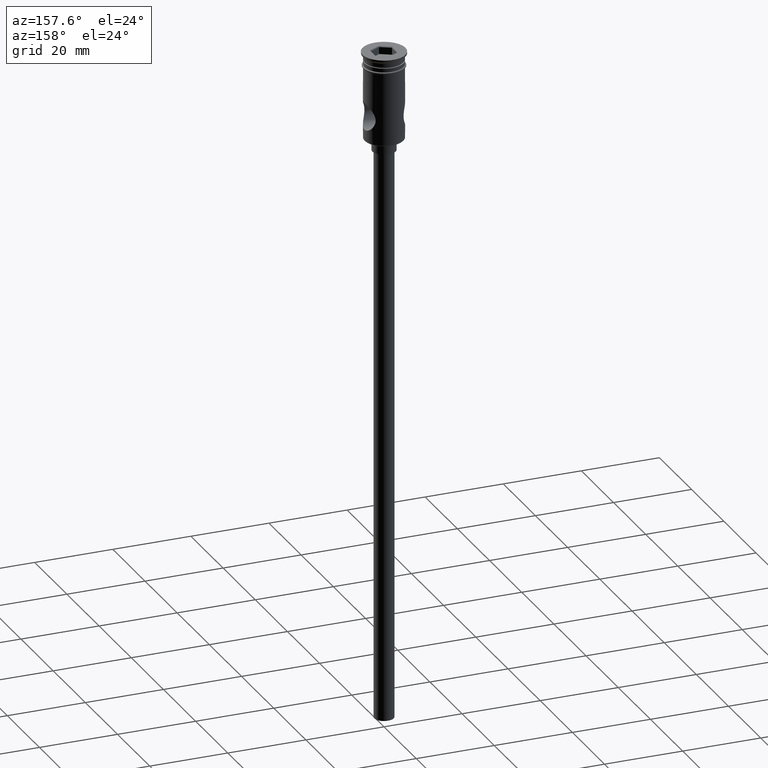
[diagram: clean part render]
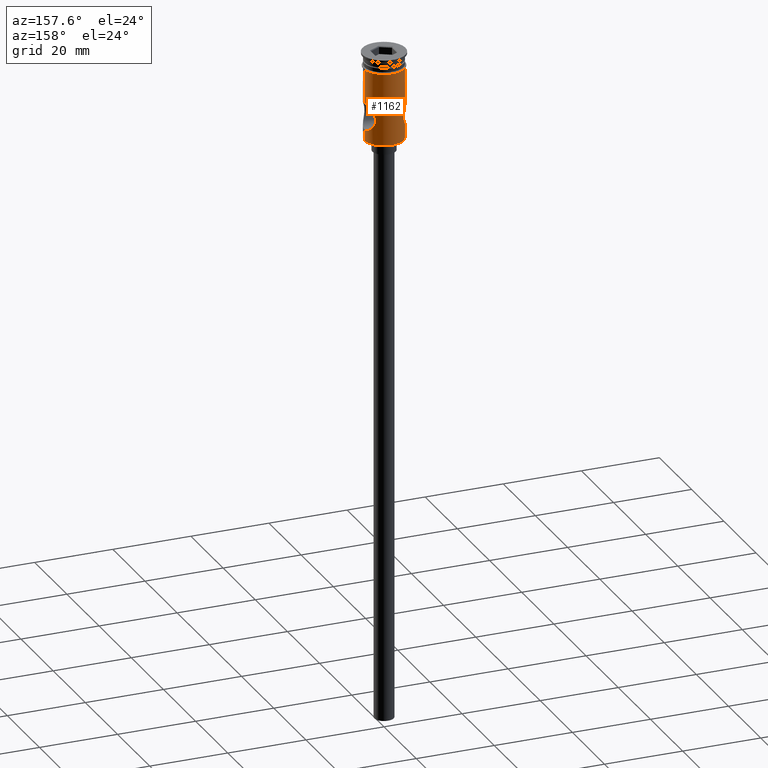
[diagram: same view with one face highlighted and labeled with its STEP entity id]
A machine part, auxiliary view. The second image highlights one B-rep face of the part: STEP entity #1162.
In plain terms, the highlighted cylindrical surface (edge-blend (fillet) strip) has radius 5 mm, axis along (-0, -0, 1).
Its self-contained STEP definition (entity closure, byte-faithful):
#6 = LINE ( 'NONE', #348, #964 ) ;
#7 = CARTESIAN_POINT ( 'NONE',  ( -4.747110842247819207, 1.585336329575865566, -19.12882620454187688 ) ) ;
#21 = CARTESIAN_POINT ( 'NONE',  ( 4.674688623500593998, 1.785640449077907865, -19.01869104075543504 ) ) ;
#28 = CARTESIAN_POINT ( 'NONE',  ( 4.999999999999997335, 0.000000000000000000, -19.50000000000000000 ) ) ;
#34 = CARTESIAN_POINT ( 'NONE',  ( 0.000000000000000000, 0.000000000000000000, -22.29999999999998295 ) ) ;
#37 = EDGE_CURVE ( 'NONE', #611, #125, #134, .T. ) ;
#44 = ORIENTED_EDGE ( 'NONE', *, *, #98, .F. ) ;
#46 = CARTESIAN_POINT ( 'NONE',  ( 3.570659081539441004, 3.500056246640168567, -15.76290149602504975 ) ) ;
#54 = CARTESIAN_POINT ( 'NONE',  ( 4.673268569421630936, 1.789070029896046243, -12.98354582332885165 ) ) ;
#62 = CARTESIAN_POINT ( 'NONE',  ( 4.514987869455996616, 2.157566970566973108, -13.23509997660900517 ) ) ;
#68 = DIRECTION ( 'NONE',  ( -0.000000000000000000, -0.000000000000000000, 1.000000000000000000 ) ) ;
#69 = CARTESIAN_POINT ( 'NONE',  ( 3.594836440833074409, 3.475833503732776997, -15.52636569858374216 ) ) ;
#75 = CARTESIAN_POINT ( 'NONE',  ( 3.897704841096373496, 3.133912156553521289, -14.42504095752970272 ) ) ;
#88 = LINE ( 'NONE', #1310, #356 ) ;
#98 = EDGE_CURVE ( 'NONE', #510, #863, #897, .T. ) ;
#107 = CARTESIAN_POINT ( 'NONE',  ( 4.999999999999997335, 0.000000000000000000, 0.000000000000000000 ) ) ;
#112 = AXIS2_PLACEMENT_3D ( 'NONE', #34, #505, #155 ) ;
#125 = VERTEX_POINT ( 'NONE', #1468 ) ;
#134 = LINE ( 'NONE', #718, #1143 ) ;
#139 = CARTESIAN_POINT ( 'NONE',  ( 4.514512332921254867, 2.158796872327483296, -18.76416415521027048 ) ) ;
#142 = B_SPLINE_CURVE_WITH_KNOTS ( 'NONE', 3,
 ( #414, #1072, #973, #1422, #756, #1304, #1292, #271, #961, #507, #388, #724, #977, #851, #162, #1193, #616, #285, #968, #280, #738, #750, #1202, #178, #625, #185, #630, #323, #7, #330, #872, #551, #1353, #896 ),
 .UNSPECIFIED., .F., .F.,
 ( 4, 2, 2, 2, 2, 2, 2, 2, 2, 2, 2, 2, 2, 2, 2, 2, 4 ),
 ( 0.01136858566133556320, 0.01207818438826614021, 0.01278778311519671897, 0.01349738184212729772, 0.01420698056905787474, 0.01491657929598845175, 0.01562617802291902877, 0.01633577674984960579, 0.01704537547678018627, 0.01775497420371076329, 0.01846457293064134031, 0.01917417165757191733, 0.01988377038450249434, 0.02059336911143307483, 0.02130296783836365185, 0.02201256656529422887, 0.02272216529222480588 ),
 .UNSPECIFIED. ) ;
#155 = DIRECTION ( 'NONE',  ( -1.000000000000000000, 0.000000000000000000, 0.000000000000000000 ) ) ;
#162 = CARTESIAN_POINT ( 'NONE',  ( -3.683539878596076012, 3.381675694554021394, -15.06753625433506016 ) ) ;
#169 = CARTESIAN_POINT ( 'NONE',  ( 3.684801900393930740, 3.380303005003528316, -16.93705528951160844 ) ) ;
#178 = CARTESIAN_POINT ( 'NONE',  ( -4.161034651282145447, 2.776525939387527675, -18.14249632040765547 ) ) ;
#185 = CARTESIAN_POINT ( 'NONE',  ( -4.430092741868957518, 2.325186606330109651, -18.62532192001001974 ) ) ;
#191 = CARTESIAN_POINT ( 'NONE',  ( 4.250179789261264496, 2.639708521817378362, -18.30881877567685834 ) ) ;
#234 = DIRECTION ( 'NONE',  ( 1.000000000000000000, 0.000000000000000000, 0.000000000000000000 ) ) ;
#237 = EDGE_CURVE ( 'NONE', #918, #510, #1449, .T. ) ;
#254 = CARTESIAN_POINT ( 'NONE',  ( 4.999999999999997335, -2.566613809368467357E-18, -12.50000000000000000 ) ) ;
#259 = DIRECTION ( 'NONE',  ( -0.000000000000000000, -0.000000000000000000, 1.000000000000000000 ) ) ;
#260 = CARTESIAN_POINT ( 'NONE',  ( 0.000000000000000000, 0.000000000000000000, 0.000000000000000000 ) ) ;
#261 = EDGE_CURVE ( 'NONE', #737, #125, #142, .T. ) ;
#265 = VECTOR ( 'NONE', #1227, 1000.000000000000000 ) ;
#268 = CYLINDRICAL_SURFACE ( 'NONE', #598, 4.999999999999997335 ) ;
#271 = CARTESIAN_POINT ( 'NONE',  ( -4.514482534237688860, 2.158728634962964854, -13.23590550600187932 ) ) ;
#276 = CARTESIAN_POINT ( 'NONE',  ( 3.595807167575519880, 3.474821472305468006, -16.47972571000775233 ) ) ;
#280 = CARTESIAN_POINT ( 'NONE',  ( -3.685548694541103565, 3.379498371712150284, -16.94023240168401045 ) ) ;
#285 = CARTESIAN_POINT ( 'NONE',  ( -3.570994643509252331, 3.499713904565604050, -16.24506344908463973 ) ) ;
#319 = CARTESIAN_POINT ( 'NONE',  ( -5.000000000000000000, 6.123233995736766282E-16, -3.799999999999998934 ) ) ;
#323 = CARTESIAN_POINT ( 'NONE',  ( -4.675804657553948473, 1.782469094714183910, -19.02037251247935146 ) ) ;
#330 = CARTESIAN_POINT ( 'NONE',  ( -4.867955598446419785, 1.162480502208107280, -19.30930261204487763 ) ) ;
#335 = ORIENTED_EDGE ( 'NONE', *, *, #1459, .F. ) ;
#340 = CARTESIAN_POINT ( 'NONE',  ( 4.999999999999997335, 0.000000000000000000, -19.50000000000000000 ) ) ;
#348 = CARTESIAN_POINT ( 'NONE',  ( 4.999999999999997335, 0.000000000000000000, 0.000000000000000000 ) ) ;
#356 = VECTOR ( 'NONE', #68, 1000.000000000000000 ) ;
#375 = CIRCLE ( 'NONE', #112, 4.999999999999997335 ) ;
#379 = DIRECTION ( 'NONE',  ( 1.000000000000000000, 0.000000000000000000, 0.000000000000000000 ) ) ;
#388 = CARTESIAN_POINT ( 'NONE',  ( -4.157772080973118456, 2.781374294039361761, -13.86384087946209398 ) ) ;
#393 = CARTESIAN_POINT ( 'NONE',  ( 4.428881612395301204, 2.327583483424053856, -13.37666337410697004 ) ) ;
#406 = CARTESIAN_POINT ( 'NONE',  ( 3.982200312216191307, 3.027363768862568083, -17.77022219329247577 ) ) ;
#414 = CARTESIAN_POINT ( 'NONE',  ( -4.999999999999997335, 6.148900133235956503E-16, -12.50000000000000000 ) ) ;
#447 = EDGE_LOOP ( 'NONE', ( #1127, #1343, #1035, #1133, #335, #44, #885, #1108 ) ) ;
#461 = CARTESIAN_POINT ( 'NONE',  ( 4.982723327959925008, 0.4759820666327093663, -19.47544279110368137 ) ) ;
#500 = CARTESIAN_POINT ( 'NONE',  ( 4.746099814749834778, 1.588584826808698613, -12.87269521592071442 ) ) ;
#505 = DIRECTION ( 'NONE',  ( -0.000000000000000000, -0.000000000000000000, 1.000000000000000000 ) ) ;
#507 = CARTESIAN_POINT ( 'NONE',  ( -4.248589671941461532, 2.642262130653794561, -13.69409696383316444 ) ) ;
#510 = VERTEX_POINT ( 'NONE', #254 ) ;
#514 = CARTESIAN_POINT ( 'NONE',  ( 3.684419786477897585, 3.380727498486507443, -15.06382182351514487 ) ) ;
#522 = CARTESIAN_POINT ( 'NONE',  ( 4.999999999999997335, -2.566613809368467357E-18, -12.50000000000000000 ) ) ;
#527 = CARTESIAN_POINT ( 'NONE',  ( 4.867983987714242566, 1.162668094897675308, -12.69064358740267728 ) ) ;
#551 = CARTESIAN_POINT ( 'NONE',  ( -4.982662755632213170, 0.4762835908019174003, -19.47535477954639305 ) ) ;
#571 = VERTEX_POINT ( 'NONE', #1151 ) ;
#585 = CARTESIAN_POINT ( 'NONE',  ( 4.999999999999997335, 0.2407161887825677027, -19.50000000000000355 ) ) ;
#598 = AXIS2_PLACEMENT_3D ( 'NONE', #260, #712, #379 ) ;
#611 = VERTEX_POINT ( 'NONE', #840 ) ;
#616 = CARTESIAN_POINT ( 'NONE',  ( -3.570438540339076816, 3.500281244049249896, -15.76317787171778484 ) ) ;
#624 = AXIS2_PLACEMENT_3D ( 'NONE', #1392, #917, #234 ) ;
#625 = CARTESIAN_POINT ( 'NONE',  ( -4.251971835984950765, 2.636844698082868810, -18.31211115133643119 ) ) ;
#630 = CARTESIAN_POINT ( 'NONE',  ( -4.517756352871694858, 2.151795251714681001, -18.76940848963280217 ) ) ;
#635 = CARTESIAN_POINT ( 'NONE',  ( 4.982628869212511802, 0.4776460173546703825, -12.52468910484750886 ) ) ;
#712 = DIRECTION ( 'NONE',  ( -0.000000000000000000, -0.000000000000000000, 1.000000000000000000 ) ) ;
#718 = CARTESIAN_POINT ( 'NONE',  ( -4.999999999999997335, 6.123233995736763324E-16, 0.000000000000000000 ) ) ;
#724 = CARTESIAN_POINT ( 'NONE',  ( -3.981112443873080053, 3.028837293434794908, -14.23213026449943364 ) ) ;
#733 = CARTESIAN_POINT ( 'NONE',  ( 4.158235378742428878, 2.780628636560694478, -13.86303714491904415 ) ) ;
#737 = VERTEX_POINT ( 'NONE', #1299 ) ;
#738 = CARTESIAN_POINT ( 'NONE',  ( -3.750129256699476610, 3.309052136048265425, -17.16230965741016945 ) ) ;
#750 = CARTESIAN_POINT ( 'NONE',  ( -3.898682939928062474, 3.132661299111801245, -17.57709320074676995 ) ) ;
#756 = CARTESIAN_POINT ( 'NONE',  ( -4.868192471333491866, 1.161849892071759704, -12.69033575581851991 ) ) ;
#765 = EDGE_CURVE ( 'NONE', #571, #611, #375, .T. ) ;
#784 = EDGE_CURVE ( 'NONE', #737, #1336, #88, .T. ) ;
#840 = CARTESIAN_POINT ( 'NONE',  ( -4.999999999999997335, 6.123233995736763324E-16, -22.29999999999998295 ) ) ;
#851 = CARTESIAN_POINT ( 'NONE',  ( -3.747640547736768912, 3.311854180050358476, -14.84566389264594655 ) ) ;
#863 = VERTEX_POINT ( 'NONE', #871 ) ;
#871 = CARTESIAN_POINT ( 'NONE',  ( 4.999999999999999112, 0.000000000000000000, -3.799999999999998934 ) ) ;
#872 = CARTESIAN_POINT ( 'NONE',  ( -4.917189828219349579, 0.9354241757019895465, -19.38081624967927041 ) ) ;
#885 = ORIENTED_EDGE ( 'NONE', *, *, #237, .F. ) ;
#891 = EDGE_CURVE ( 'NONE', #571, #918, #6, .T. ) ;
#896 = CARTESIAN_POINT ( 'NONE',  ( -4.999999999999997335, 0.000000000000000000, -19.50000000000000000 ) ) ;
#897 = LINE ( 'NONE', #107, #265 ) ;
#917 = DIRECTION ( 'NONE',  ( -0.000000000000000000, -0.000000000000000000, 1.000000000000000000 ) ) ;
#918 = VERTEX_POINT ( 'NONE', #340 ) ;
#925 = CARTESIAN_POINT ( 'NONE',  ( 4.917023530514224916, 0.9364669193951435933, -19.38057557686099130 ) ) ;
#941 = CARTESIAN_POINT ( 'NONE',  ( 4.428186069255828805, 2.328788839128362653, -18.62210750386486779 ) ) ;
#961 = CARTESIAN_POINT ( 'NONE',  ( -4.426715284047066490, 2.331577826622753591, -13.38036590003647852 ) ) ;
#964 = VECTOR ( 'NONE', #1122, 1000.000000000000000 ) ;
#968 = CARTESIAN_POINT ( 'NONE',  ( -3.595881830421372882, 3.474753557575580576, -16.48076390016037251 ) ) ;
#973 = CARTESIAN_POINT ( 'NONE',  ( -4.982711918612967139, 0.4767562777365489390, -12.52457057321148604 ) ) ;
#977 = CARTESIAN_POINT ( 'NONE',  ( -3.895739369778995265, 3.136303962901519249, -14.43013777325952240 ) ) ;
#1035 = ORIENTED_EDGE ( 'NONE', *, *, #261, .F. ) ;
#1072 = CARTESIAN_POINT ( 'NONE',  ( -4.999999999999997335, 0.2368473339933011013, -12.50000000000000178 ) ) ;
#1081 = CARTESIAN_POINT ( 'NONE',  ( 3.982796017137843592, 3.026574460567178715, -14.22846030439630560 ) ) ;
#1087 = CARTESIAN_POINT ( 'NONE',  ( 4.916256218981320814, 0.9408299291222754768, -12.62053693904961271 ) ) ;
#1094 = CARTESIAN_POINT ( 'NONE',  ( 3.747877086464327157, 3.311634910139662047, -14.84458855276694678 ) ) ;
#1108 = ORIENTED_EDGE ( 'NONE', *, *, #891, .F. ) ;
#1122 = DIRECTION ( 'NONE',  ( -0.000000000000000000, -0.000000000000000000, 1.000000000000000000 ) ) ;
#1127 = ORIENTED_EDGE ( 'NONE', *, *, #765, .T. ) ;
#1133 = ORIENTED_EDGE ( 'NONE', *, *, #784, .T. ) ;
#1143 = VECTOR ( 'NONE', #259, 1000.000000000000000 ) ;
#1151 = CARTESIAN_POINT ( 'NONE',  ( 4.999999999999997335, 0.000000000000000000, -22.29999999999998295 ) ) ;
#1162 = ADVANCED_FACE ( 'NONE', ( #1285 ), #268, .T. ) ;
#1179 = CARTESIAN_POINT ( 'NONE',  ( 4.999999999999999112, 0.2371603752032608592, -12.49999999999999822 ) ) ;
#1188 = CARTESIAN_POINT ( 'NONE',  ( 4.157812118375018073, 2.781267535482760067, -18.13615750793723791 ) ) ;
#1193 = CARTESIAN_POINT ( 'NONE',  ( -3.594691202437674704, 3.475973489464814659, -15.52795398460032317 ) ) ;
#1202 = CARTESIAN_POINT ( 'NONE',  ( -3.983893823206855700, 3.025210020259219590, -17.77411699399317513 ) ) ;
#1208 = CARTESIAN_POINT ( 'NONE',  ( 4.249353914272581356, 2.641141518392748910, -13.69263973231696774 ) ) ;
#1227 = DIRECTION ( 'NONE',  ( -0.000000000000000000, -0.000000000000000000, 1.000000000000000000 ) ) ;
#1260 = CARTESIAN_POINT ( 'NONE',  ( 4.746911793493237219, 1.585927392041884820, -19.12852474954947368 ) ) ;
#1285 = FACE_OUTER_BOUND ( 'NONE', #447, .T. ) ;
#1292 = CARTESIAN_POINT ( 'NONE',  ( -4.673659481606455834, 1.788174745749496974, -12.98292214720542681 ) ) ;
#1299 = CARTESIAN_POINT ( 'NONE',  ( -4.999999999999997335, 6.148900133235956503E-16, -12.50000000000000000 ) ) ;
#1300 = CARTESIAN_POINT ( 'NONE',  ( 3.570769539400989512, 3.499943557075027467, -16.23875620938738251 ) ) ;
#1304 = CARTESIAN_POINT ( 'NONE',  ( -4.746196912351519970, 1.588334970602913954, -12.87254662671362304 ) ) ;
#1310 = CARTESIAN_POINT ( 'NONE',  ( -4.999999999999997335, 6.123233995736763324E-16, 0.000000000000000000 ) ) ;
#1318 = CARTESIAN_POINT ( 'NONE',  ( 3.749404186130726568, 3.309880205360250738, -17.16006671215495061 ) ) ;
#1336 = VERTEX_POINT ( 'NONE', #319 ) ;
#1343 = ORIENTED_EDGE ( 'NONE', *, *, #37, .T. ) ;
#1353 = CARTESIAN_POINT ( 'NONE',  ( -4.999999999999997335, 0.2403984540558916083, -19.49999999999999645 ) ) ;
#1374 = CARTESIAN_POINT ( 'NONE',  ( 4.867792988234955764, 1.163154629326878631, -19.30906393254161557 ) ) ;
#1392 = CARTESIAN_POINT ( 'NONE',  ( 0.000000000000000000, 0.000000000000000000, -3.799999999999998934 ) ) ;
#1422 = CARTESIAN_POINT ( 'NONE',  ( -4.916439270295949626, 0.9398614332659723791, -12.62027120389697998 ) ) ;
#1426 = CARTESIAN_POINT ( 'NONE',  ( 3.898231521578598979, 3.133229919584781253, -17.57604949843092967 ) ) ;
#1449 = B_SPLINE_CURVE_WITH_KNOTS ( 'NONE', 3,
 ( #28, #585, #461, #925, #1374, #1260, #21, #139, #941, #191, #1188, #406, #1426, #1318, #169, #276, #1300, #46, #69, #514, #1094, #75, #1081, #733, #1208, #393, #62, #54, #500, #527, #1087, #635, #1179, #522 ),
 .UNSPECIFIED., .F., .F.,
 ( 4, 2, 2, 2, 2, 2, 2, 2, 2, 2, 2, 2, 2, 2, 2, 2, 4 ),
 ( 0.000000000000000000, 0.0007105366038334728082, 0.001421073207666945616, 0.002131609811500418533, 0.002842146415333890799, 0.003552683019167363499, 0.004263219623000835332, 0.004973756226834308465, 0.005684292830667780731, 0.006394829434501252997, 0.007105366038334726131, 0.007815902642168198397, 0.008526439246001670663, 0.009236975849835144664, 0.009947512453668618665, 0.01065804905750209093, 0.01136858566133556320 ),
 .UNSPECIFIED. ) ;
#1453 = CIRCLE ( 'NONE', #624, 4.999999999999999112 ) ;
#1459 = EDGE_CURVE ( 'NONE', #863, #1336, #1453, .T. ) ;
#1468 = CARTESIAN_POINT ( 'NONE',  ( -4.999999999999997335, 0.000000000000000000, -19.50000000000000000 ) ) ;